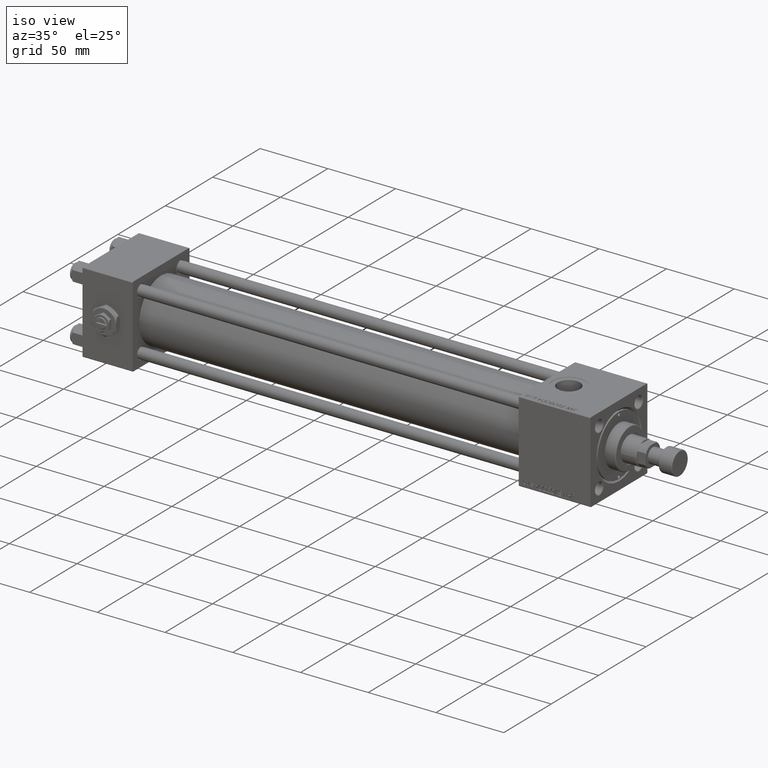
[diagram: clean part render]
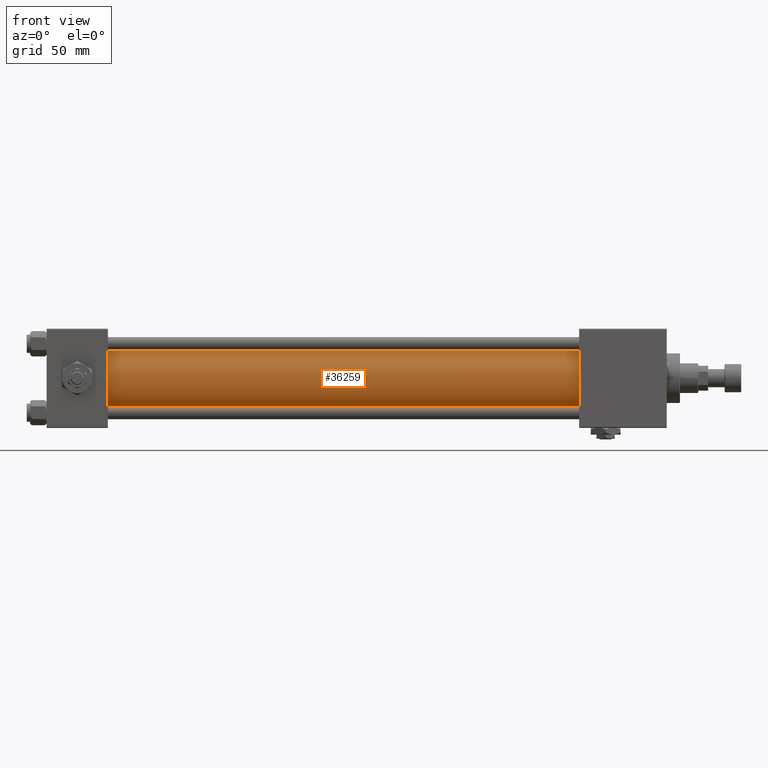
[diagram: tour spotlight — one face highlighted and labeled with its STEP entity id]
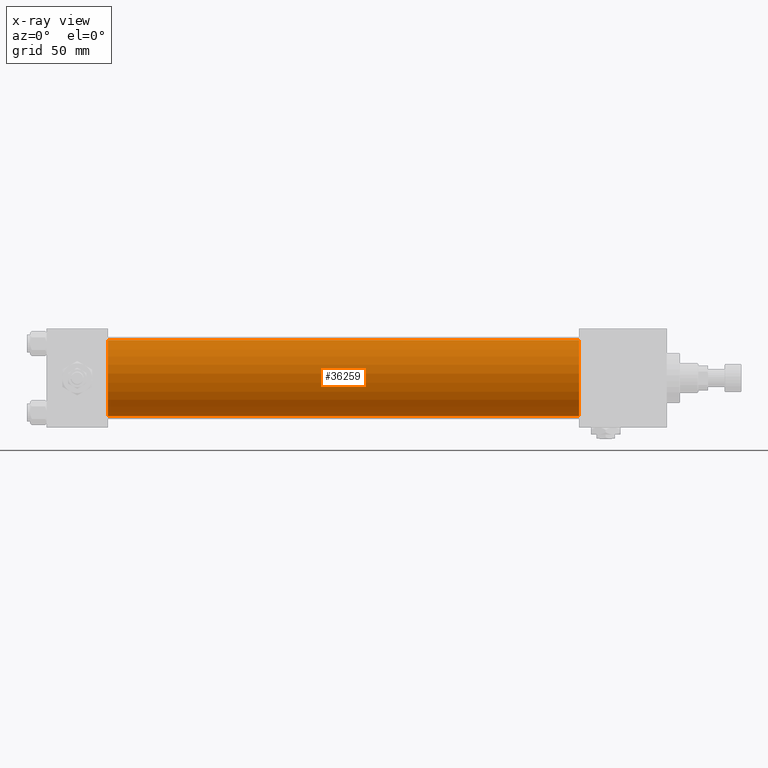
[diagram: x-ray of the same camera — body ghosted, this tour face saturated]
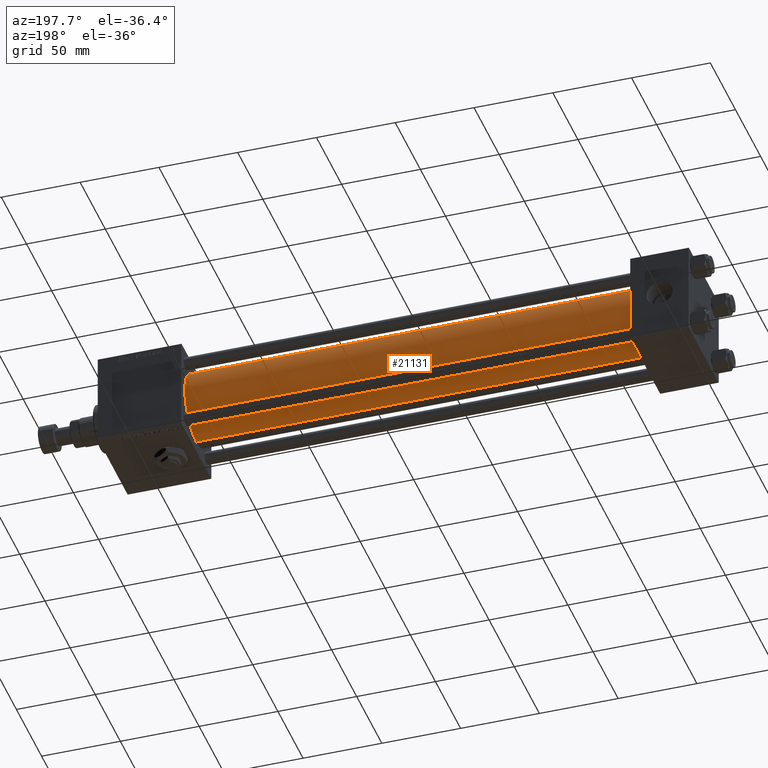
[diagram: tour spotlight — one face highlighted and labeled with its STEP entity id]
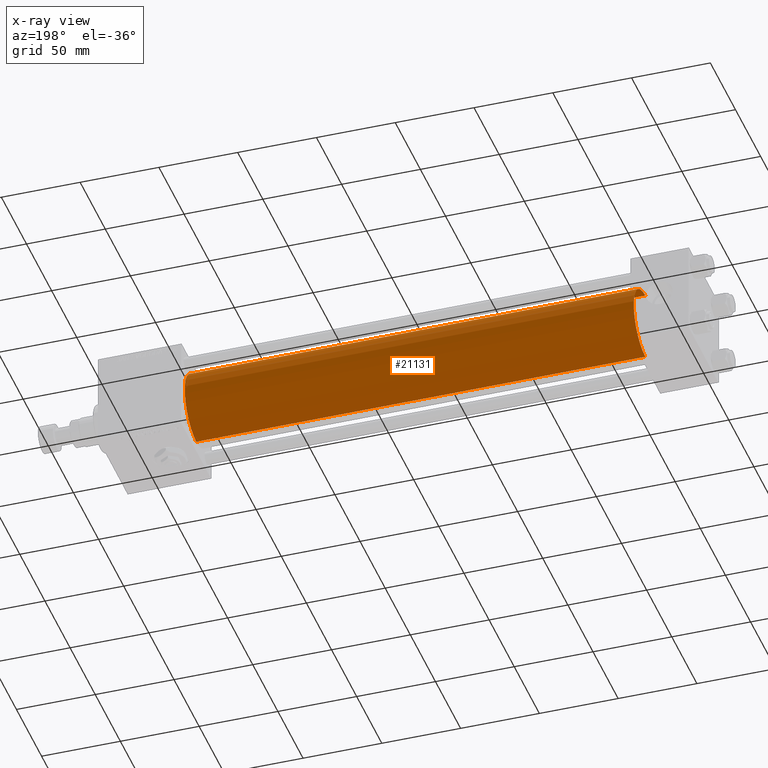
[diagram: x-ray of the same camera — body ghosted, this tour face saturated]
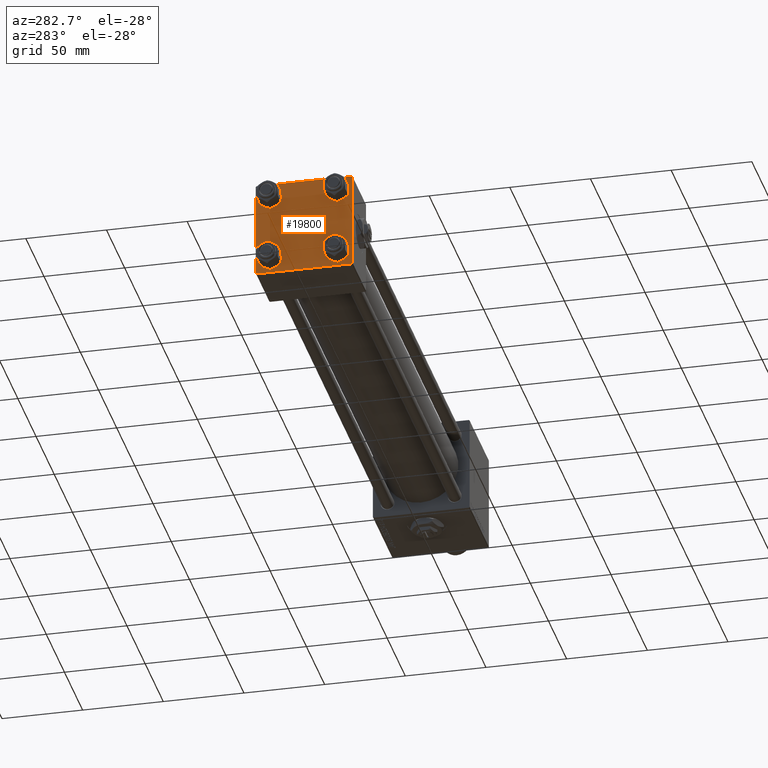
[diagram: tour spotlight — one face highlighted and labeled with its STEP entity id]
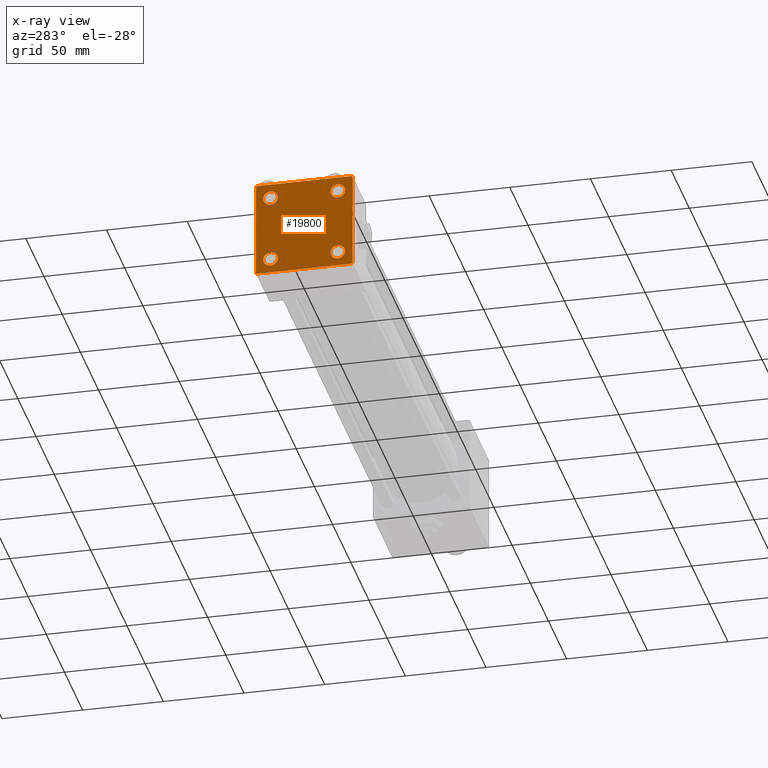
[diagram: x-ray of the same camera — body ghosted, this tour face saturated]
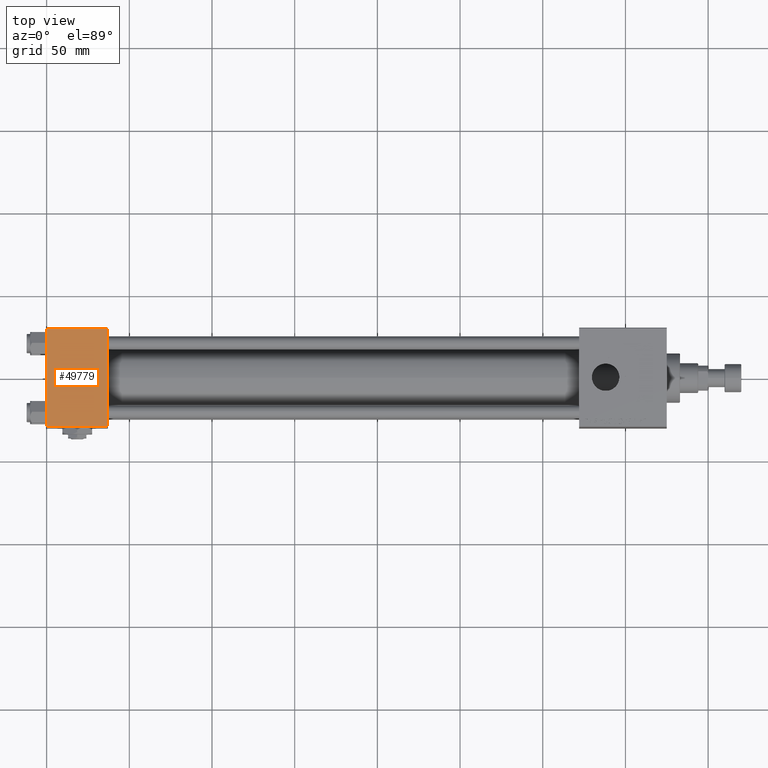
[diagram: tour spotlight — one face highlighted and labeled with its STEP entity id]
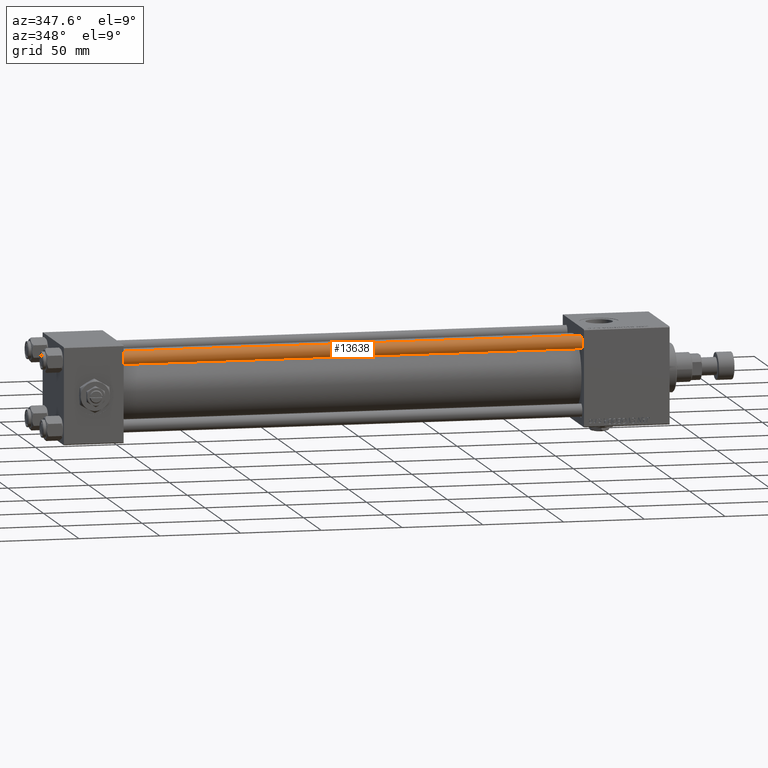
[diagram: tour spotlight — one face highlighted and labeled with its STEP entity id]
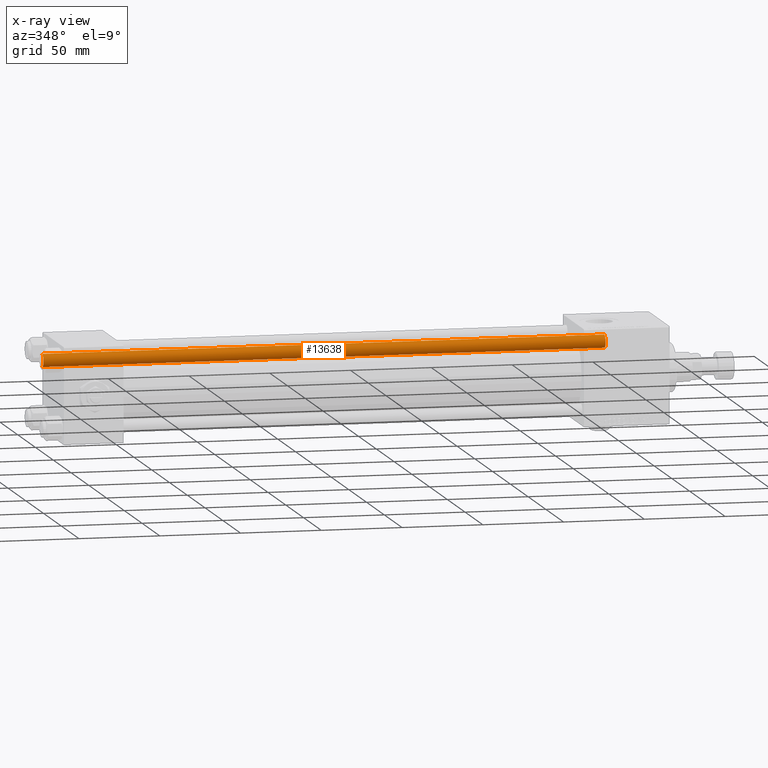
[diagram: x-ray of the same camera — body ghosted, this tour face saturated]
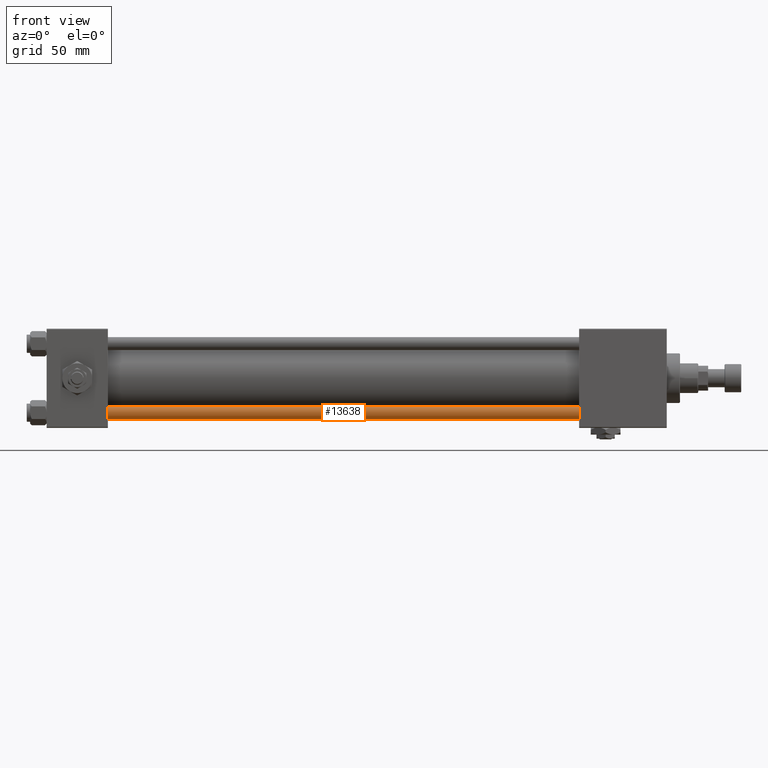
[diagram: tour spotlight — one face highlighted and labeled with its STEP entity id]
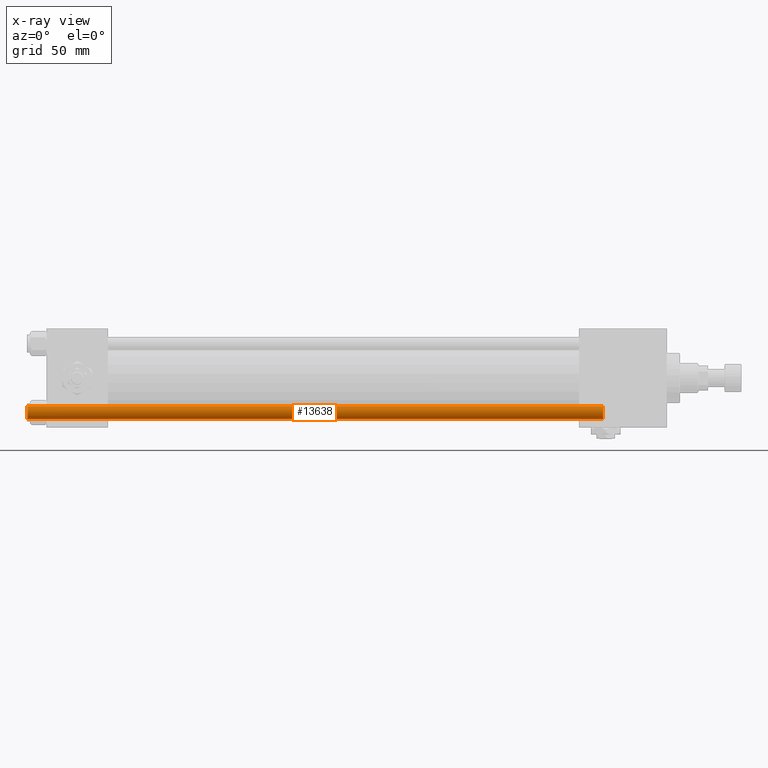
[diagram: x-ray of the same camera — body ghosted, this tour face saturated]
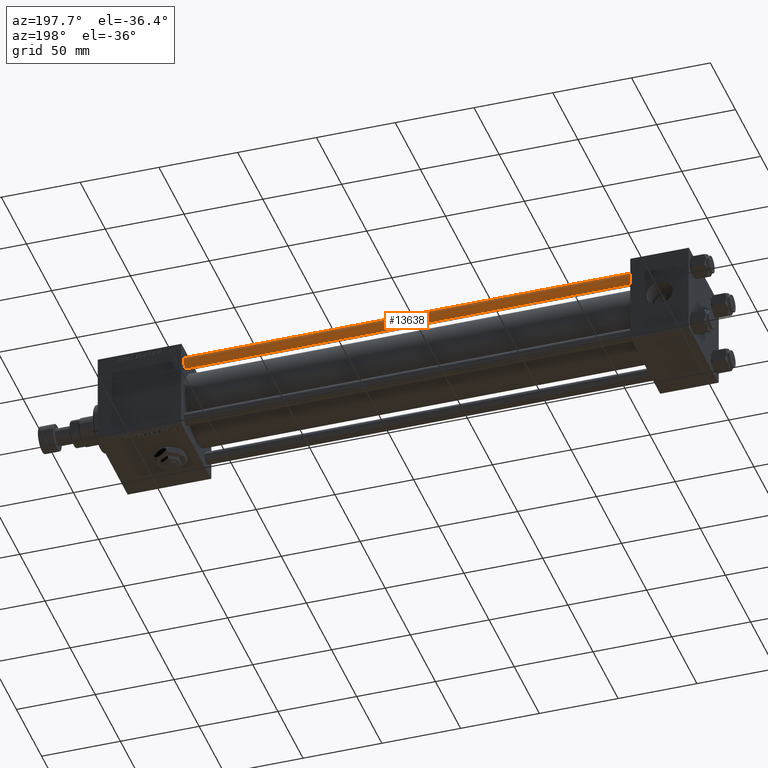
[diagram: tour spotlight — one face highlighted and labeled with its STEP entity id]
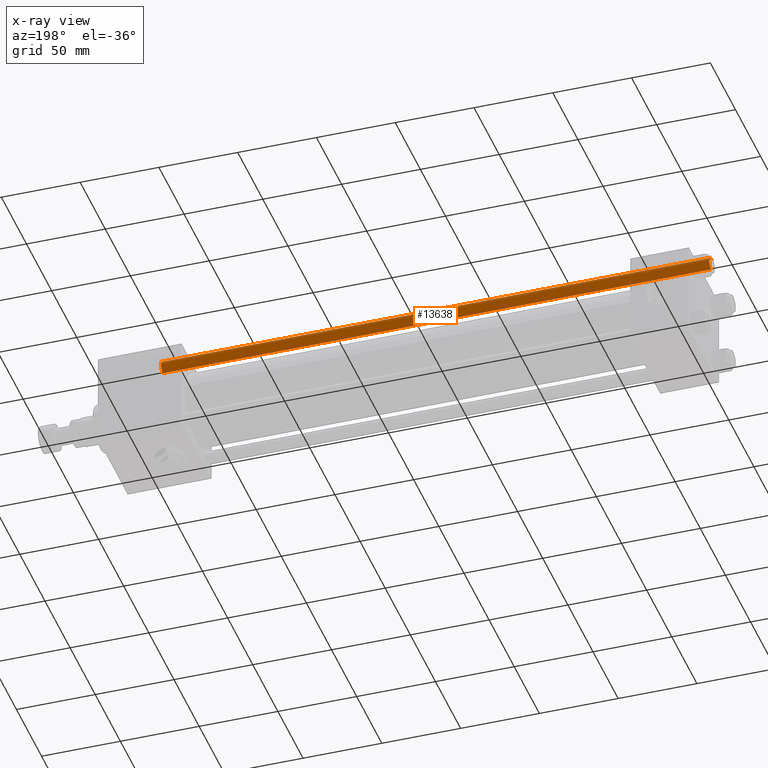
[diagram: x-ray of the same camera — body ghosted, this tour face saturated]
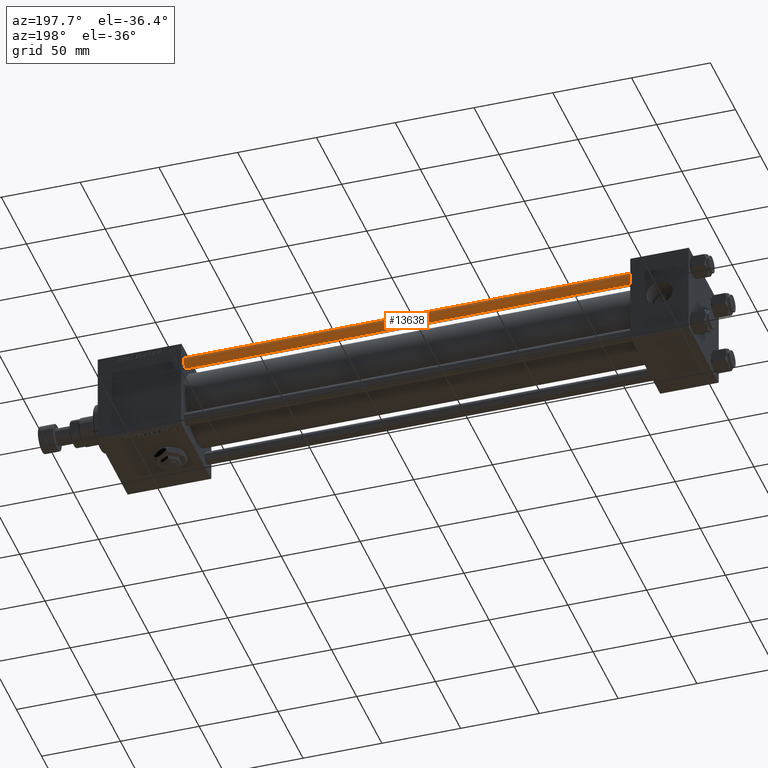
[diagram: tour spotlight — one face highlighted and labeled with its STEP entity id]
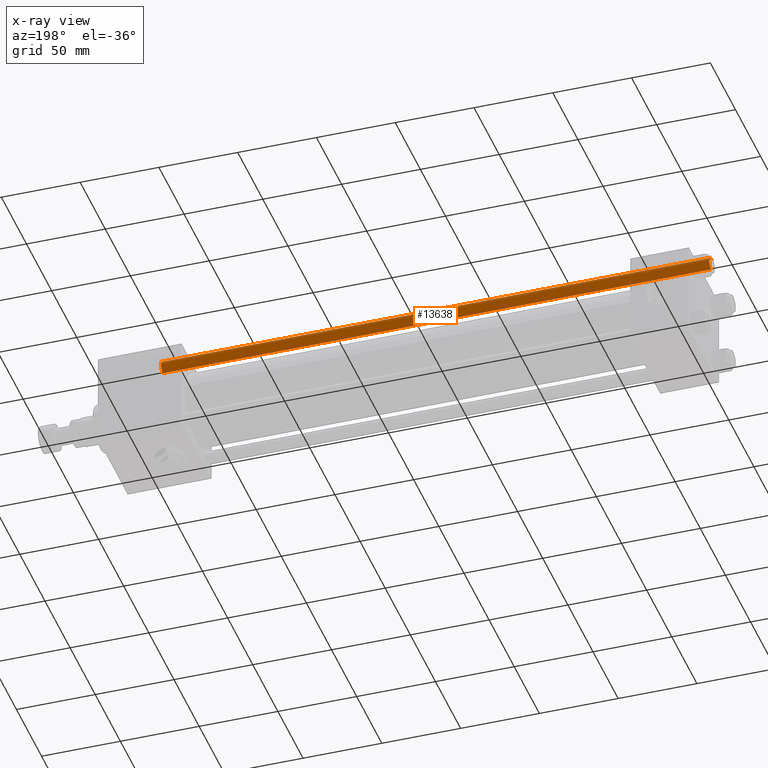
[diagram: x-ray of the same camera — body ghosted, this tour face saturated]
A machine part: a face-by-face anatomy tour. The part has 1267 B-rep faces; the first image is the clean iso view, then the 8 largest visible faces are spotlighted one at a time (largest first), each with its STEP entity span.

Face 1 — front view, entity #36259. An x-ray twin of the same camera follows (body ghosted, this face saturated) — the face is partly hidden behind the body. In plain terms, the highlighted cylindrical surface (partial cylindrical patch) has radius 23 mm, axis along (-1, -0, -0).
Definition (entity closure, byte-faithful):
#1541 = DIRECTION ( 'NONE',  ( -1.000000000000000000, -0.000000000000000000, -0.000000000000000000 ) ) ;
#3483 = DIRECTION ( 'NONE',  ( 0.000000000000000000, 0.000000000000000000, -1.000000000000000000 ) ) ;
#4223 = EDGE_CURVE ( 'NONE', #34495, #34397, #50400, .T. ) ;
#4259 = CIRCLE ( 'NONE', #34068, 23.00000000000000000 ) ;
#4943 = ORIENTED_EDGE ( 'NONE', *, *, #4223, .F. ) ;
#5085 = AXIS2_PLACEMENT_3D ( 'NONE', #38764, #43548, #6986 ) ;
#5568 = DIRECTION ( 'NONE',  ( -1.000000000000000000, -0.000000000000000000, -0.000000000000000000 ) ) ;
#6986 = DIRECTION ( 'NONE',  ( 0.000000000000000000, 0.000000000000000000, 1.000000000000000000 ) ) ;
#8114 = CARTESIAN_POINT ( 'NONE',  ( 36.99999999999997868, -2.602085213965210642E-15, 0.000000000000000000 ) ) ;
#9907 = CARTESIAN_POINT ( 'NONE',  ( 321.9999999999999432, 2.146024240737016609E-16, -23.00000000000000000 ) ) ;
#10939 = DIRECTION ( 'NONE',  ( 1.000000000000000000, 0.000000000000000000, 0.000000000000000000 ) ) ;
#16381 = DIRECTION ( 'NONE',  ( 1.000000000000000000, -0.000000000000000000, 0.000000000000000000 ) ) ;
#18782 = EDGE_CURVE ( 'NONE', #31307, #18832, #42102, .T. ) ;
#18832 = VERTEX_POINT ( 'NONE', #46632 ) ;
#21823 = ORIENTED_EDGE ( 'NONE', *, *, #18782, .T. ) ;
#21978 = CARTESIAN_POINT ( 'NONE',  ( 321.9999999999999432, -2.602085213965210642E-15, 23.00000000000000000 ) ) ;
#24225 = VECTOR ( 'NONE', #1541, 1000.000000000000000 ) ;
#24682 = DIRECTION ( 'NONE',  ( 0.000000000000000000, 0.000000000000000000, 1.000000000000000000 ) ) ;
#29337 = CARTESIAN_POINT ( 'NONE',  ( 321.9999999999999432, 2.146024240737016609E-16, -23.00000000000000000 ) ) ;
#31307 = VERTEX_POINT ( 'NONE', #21978 ) ;
#32717 = EDGE_CURVE ( 'NONE', #31307, #34495, #52703, .T. ) ;
#34038 = ORIENTED_EDGE ( 'NONE', *, *, #32717, .F. ) ;
#34068 = AXIS2_PLACEMENT_3D ( 'NONE', #8114, #16381, #24682 ) ;
#34397 = VERTEX_POINT ( 'NONE', #43318 ) ;
#34495 = VERTEX_POINT ( 'NONE', #9907 ) ;
#36024 = EDGE_CURVE ( 'NONE', #18832, #34397, #4259, .T. ) ;
#36259 = ADVANCED_FACE ( 'NONE', ( #42759 ), #47563, .T. ) ;
#36346 = VECTOR ( 'NONE', #5568, 1000.000000000000000 ) ;
#38370 = CARTESIAN_POINT ( 'NONE',  ( 321.9999999999999432, -2.602085213965210642E-15, 23.00000000000000000 ) ) ;
#38764 = CARTESIAN_POINT ( 'NONE',  ( 321.9999999999999432, -2.602085213965210642E-15, 0.000000000000000000 ) ) ;
#39053 = AXIS2_PLACEMENT_3D ( 'NONE', #48597, #10939, #3483 ) ;
#42102 = LINE ( 'NONE', #38370, #24225 ) ;
#42759 = FACE_OUTER_BOUND ( 'NONE', #47213, .T. ) ;
#43318 = CARTESIAN_POINT ( 'NONE',  ( 36.99999999999997868, 2.146024240737016609E-16, -23.00000000000000000 ) ) ;
#43548 = DIRECTION ( 'NONE',  ( -1.000000000000000000, -0.000000000000000000, -0.000000000000000000 ) ) ;
#46632 = CARTESIAN_POINT ( 'NONE',  ( 36.99999999999997868, -2.602085213965210642E-15, 23.00000000000000000 ) ) ;
#47213 = EDGE_LOOP ( 'NONE', ( #4943, #34038, #21823, #51090 ) ) ;
#47563 = CYLINDRICAL_SURFACE ( 'NONE', #5085, 23.00000000000000000 ) ;
#48597 = CARTESIAN_POINT ( 'NONE',  ( 321.9999999999999432, -2.602085213965210642E-15, 0.000000000000000000 ) ) ;
#50400 = LINE ( 'NONE', #29337, #36346 ) ;
#51090 = ORIENTED_EDGE ( 'NONE', *, *, #36024, .T. ) ;
#52703 = CIRCLE ( 'NONE', #39053, 23.00000000000000000 ) ;

Face 2 — auxiliary view, entity #21131. An x-ray twin of the same camera follows (body ghosted, this face saturated) — the face is partly hidden behind the body. In plain terms, the highlighted cylindrical surface (partial cylindrical patch) has radius 23 mm, axis along (-1, -0, -0).
Definition (entity closure, byte-faithful):
#1541 = DIRECTION ( 'NONE',  ( -1.000000000000000000, -0.000000000000000000, -0.000000000000000000 ) ) ;
#3132 = DIRECTION ( 'NONE',  ( -1.000000000000000000, -0.000000000000000000, -0.000000000000000000 ) ) ;
#4223 = EDGE_CURVE ( 'NONE', #34495, #34397, #50400, .T. ) ;
#5281 = ORIENTED_EDGE ( 'NONE', *, *, #18782, .F. ) ;
#5568 = DIRECTION ( 'NONE',  ( -1.000000000000000000, -0.000000000000000000, -0.000000000000000000 ) ) ;
#6401 = AXIS2_PLACEMENT_3D ( 'NONE', #7389, #3132, #18873 ) ;
#6603 = CYLINDRICAL_SURFACE ( 'NONE', #6401, 23.00000000000000000 ) ;
#7389 = CARTESIAN_POINT ( 'NONE',  ( 321.9999999999999432, -2.602085213965210642E-15, 0.000000000000000000 ) ) ;
#9854 = ORIENTED_EDGE ( 'NONE', *, *, #4223, .T. ) ;
#9907 = CARTESIAN_POINT ( 'NONE',  ( 321.9999999999999432, 2.146024240737016609E-16, -23.00000000000000000 ) ) ;
#11831 = CIRCLE ( 'NONE', #22878, 23.00000000000000000 ) ;
#12167 = DIRECTION ( 'NONE',  ( 0.000000000000000000, 0.000000000000000000, -1.000000000000000000 ) ) ;
#18782 = EDGE_CURVE ( 'NONE', #31307, #18832, #42102, .T. ) ;
#18832 = VERTEX_POINT ( 'NONE', #46632 ) ;
#18873 = DIRECTION ( 'NONE',  ( 0.000000000000000000, 0.000000000000000000, 1.000000000000000000 ) ) ;
#21131 = ADVANCED_FACE ( 'NONE', ( #51702 ), #6603, .T. ) ;
#21978 = CARTESIAN_POINT ( 'NONE',  ( 321.9999999999999432, -2.602085213965210642E-15, 23.00000000000000000 ) ) ;
#22878 = AXIS2_PLACEMENT_3D ( 'NONE', #48754, #44206, #12167 ) ;
#24225 = VECTOR ( 'NONE', #1541, 1000.000000000000000 ) ;
#24254 = ORIENTED_EDGE ( 'NONE', *, *, #44637, .T. ) ;
#27116 = CIRCLE ( 'NONE', #31375, 23.00000000000000000 ) ;
#29337 = CARTESIAN_POINT ( 'NONE',  ( 321.9999999999999432, 2.146024240737016609E-16, -23.00000000000000000 ) ) ;
#31307 = VERTEX_POINT ( 'NONE', #21978 ) ;
#31375 = AXIS2_PLACEMENT_3D ( 'NONE', #48406, #44400, #48681 ) ;
#34397 = VERTEX_POINT ( 'NONE', #43318 ) ;
#34495 = VERTEX_POINT ( 'NONE', #9907 ) ;
#36346 = VECTOR ( 'NONE', #5568, 1000.000000000000000 ) ;
#38370 = CARTESIAN_POINT ( 'NONE',  ( 321.9999999999999432, -2.602085213965210642E-15, 23.00000000000000000 ) ) ;
#42102 = LINE ( 'NONE', #38370, #24225 ) ;
#43318 = CARTESIAN_POINT ( 'NONE',  ( 36.99999999999997868, 2.146024240737016609E-16, -23.00000000000000000 ) ) ;
#43663 = EDGE_LOOP ( 'NONE', ( #50521, #9854, #24254, #5281 ) ) ;
#44206 = DIRECTION ( 'NONE',  ( 1.000000000000000000, 0.000000000000000000, 0.000000000000000000 ) ) ;
#44400 = DIRECTION ( 'NONE',  ( 1.000000000000000000, -0.000000000000000000, 0.000000000000000000 ) ) ;
#44637 = EDGE_CURVE ( 'NONE', #34397, #18832, #27116, .T. ) ;
#45119 = EDGE_CURVE ( 'NONE', #34495, #31307, #11831, .T. ) ;
#46632 = CARTESIAN_POINT ( 'NONE',  ( 36.99999999999997868, -2.602085213965210642E-15, 23.00000000000000000 ) ) ;
#48406 = CARTESIAN_POINT ( 'NONE',  ( 36.99999999999997868, -2.602085213965210642E-15, 0.000000000000000000 ) ) ;
#48681 = DIRECTION ( 'NONE',  ( 0.000000000000000000, 0.000000000000000000, 1.000000000000000000 ) ) ;
#48754 = CARTESIAN_POINT ( 'NONE',  ( 321.9999999999999432, -2.602085213965210642E-15, 0.000000000000000000 ) ) ;
#50400 = LINE ( 'NONE', #29337, #36346 ) ;
#50521 = ORIENTED_EDGE ( 'NONE', *, *, #45119, .F. ) ;
#51702 = FACE_OUTER_BOUND ( 'NONE', #43663, .T. ) ;

Face 3 — auxiliary view, entity #19800. An x-ray twin of the same camera follows (body ghosted, this face saturated) — the face is partly hidden behind the body. In plain terms, the highlighted planar face has unit normal (-1, 0, 0).
Definition (entity closure, byte-faithful):
#1275 = LINE ( 'NONE', #50635, #8866 ) ;
#1331 = CARTESIAN_POINT ( 'NONE',  ( 0.000000000000000000, 29.49999999999997868, -30.00000000000000000 ) ) ;
#1455 = LINE ( 'NONE', #34788, #7581 ) ;
#1680 = CIRCLE ( 'NONE', #5938, 4.500000000000017764 ) ;
#2155 = VERTEX_POINT ( 'NONE', #49653 ) ;
#2359 = CARTESIAN_POINT ( 'NONE',  ( 0.000000000000000000, -30.00000000000000000, 29.49999999999999289 ) ) ;
#2920 = FACE_BOUND ( 'NONE', #39625, .T. ) ;
#3192 = CARTESIAN_POINT ( 'NONE',  ( 0.000000000000000000, 20.84999999999999787, -20.85000000000000142 ) ) ;
#3428 = VERTEX_POINT ( 'NONE', #34819 ) ;
#3810 = EDGE_CURVE ( 'NONE', #51955, #36651, #16314, .T. ) ;
#4359 = CARTESIAN_POINT ( 'NONE',  ( 0.000000000000000000, 29.99999999999999289, 29.50000000000000000 ) ) ;
#4527 = ORIENTED_EDGE ( 'NONE', *, *, #33400, .T. ) ;
#5048 = DIRECTION ( 'NONE',  ( 0.000000000000000000, 0.000000000000000000, 1.000000000000000000 ) ) ;
#5545 = DIRECTION ( 'NONE',  ( 0.000000000000000000, -0.7071067811865474617, 0.7071067811865474617 ) ) ;
#5938 = AXIS2_PLACEMENT_3D ( 'NONE', #36110, #35580, #39855 ) ;
#6167 = VERTEX_POINT ( 'NONE', #31538 ) ;
#6657 = PLANE ( 'NONE',  #34446 ) ;
#6731 = AXIS2_PLACEMENT_3D ( 'NONE', #51035, #18994, #10715 ) ;
#6972 = EDGE_LOOP ( 'NONE', ( #39996, #36644 ) ) ;
#7125 = CARTESIAN_POINT ( 'NONE',  ( 0.000000000000000000, 20.84999999999999787, 16.34999999999998366 ) ) ;
#7443 = EDGE_CURVE ( 'NONE', #50361, #42239, #22068, .T. ) ;
#7513 = CARTESIAN_POINT ( 'NONE',  ( 0.000000000000000000, -30.00000000000000000, 29.99999999999999289 ) ) ;
#7581 = VECTOR ( 'NONE', #17976, 999.9999999999998863 ) ;
#8866 = VECTOR ( 'NONE', #5545, 1000.000000000000114 ) ;
#9728 = ORIENTED_EDGE ( 'NONE', *, *, #40375, .T. ) ;
#10331 = DIRECTION ( 'NONE',  ( 0.000000000000000000, -1.000000000000000000, -1.156482317317871725E-16 ) ) ;
#10543 = EDGE_LOOP ( 'NONE', ( #20755, #16499 ) ) ;
#10715 = DIRECTION ( 'NONE',  ( 0.000000000000000000, 0.000000000000000000, 1.000000000000000000 ) ) ;
#11356 = ORIENTED_EDGE ( 'NONE', *, *, #7443, .T. ) ;
#11599 = VECTOR ( 'NONE', #40620, 1000.000000000000000 ) ;
#11890 = CARTESIAN_POINT ( 'NONE',  ( 0.000000000000000000, 29.49999999999999289, 30.00000000000000000 ) ) ;
#12356 = EDGE_LOOP ( 'NONE', ( #45228, #25575, #28808, #46314, #49483, #15357, #16979, #9728 ) ) ;
#12419 = DIRECTION ( 'NONE',  ( 0.000000000000000000, 0.000000000000000000, 1.000000000000000000 ) ) ;
#12799 = ORIENTED_EDGE ( 'NONE', *, *, #47112, .T. ) ;
#13029 = VERTEX_POINT ( 'NONE', #4359 ) ;
#13444 = CARTESIAN_POINT ( 'NONE',  ( 0.000000000000000000, -20.84999999999999076, -20.85000000000000497 ) ) ;
#13707 = EDGE_CURVE ( 'NONE', #51955, #29269, #47338, .T. ) ;
#13941 = LINE ( 'NONE', #30244, #35357 ) ;
#14754 = DIRECTION ( 'NONE',  ( -0.000000000000000000, 0.7071067811865474617, 0.7071067811865474617 ) ) ;
#15357 = ORIENTED_EDGE ( 'NONE', *, *, #13707, .T. ) ;
#16314 = LINE ( 'NONE', #7513, #11599 ) ;
#16499 = ORIENTED_EDGE ( 'NONE', *, *, #20796, .T. ) ;
#16979 = ORIENTED_EDGE ( 'NONE', *, *, #20706, .F. ) ;
#17791 = ORIENTED_EDGE ( 'NONE', *, *, #52106, .T. ) ;
#17821 = AXIS2_PLACEMENT_3D ( 'NONE', #45608, #41606, #5048 ) ;
#17976 = DIRECTION ( 'NONE',  ( -0.000000000000000000, -0.7071067811865574537, -0.7071067811865376918 ) ) ;
#18033 = CIRCLE ( 'NONE', #47921, 4.500000000000017764 ) ;
#18617 = EDGE_CURVE ( 'NONE', #13029, #6167, #23441, .T. ) ;
#18751 = EDGE_CURVE ( 'NONE', #3428, #36651, #1275, .T. ) ;
#18994 = DIRECTION ( 'NONE',  ( 1.000000000000000000, -0.000000000000000000, 0.000000000000000000 ) ) ;
#19447 = DIRECTION ( 'NONE',  ( -1.000000000000000000, 0.000000000000000000, -0.000000000000000000 ) ) ;
#19800 = ADVANCED_FACE ( 'NONE', ( #39751, #2920, #43214, #40286, #27214 ), #6657, .T. ) ;
#20706 = EDGE_CURVE ( 'NONE', #29019, #29269, #13941, .T. ) ;
#20755 = ORIENTED_EDGE ( 'NONE', *, *, #46464, .T. ) ;
#20796 = EDGE_CURVE ( 'NONE', #46580, #2155, #32822, .T. ) ;
#21089 = VERTEX_POINT ( 'NONE', #7125 ) ;
#21246 = AXIS2_PLACEMENT_3D ( 'NONE', #52560, #36823, #45613 ) ;
#21974 = AXIS2_PLACEMENT_3D ( 'NONE', #49006, #37245, #12419 ) ;
#22068 = CIRCLE ( 'NONE', #21246, 4.500000000000017764 ) ;
#22095 = LINE ( 'NONE', #26375, #28044 ) ;
#22228 = CARTESIAN_POINT ( 'NONE',  ( 0.000000000000000000, -20.84999999999999076, -16.34999999999998721 ) ) ;
#22310 = CARTESIAN_POINT ( 'NONE',  ( 0.000000000000000000, -20.84999999999999076, 16.34999999999998721 ) ) ;
#22758 = DIRECTION ( 'NONE',  ( 1.000000000000000000, -0.000000000000000000, 0.000000000000000000 ) ) ;
#23441 = LINE ( 'NONE', #35718, #34415 ) ;
#23467 = CARTESIAN_POINT ( 'NONE',  ( 0.000000000000000000, -30.00000000000000000, -29.50000000000001776 ) ) ;
#24122 = VERTEX_POINT ( 'NONE', #25648 ) ;
#24309 = CARTESIAN_POINT ( 'NONE',  ( 0.000000000000000000, 29.74999999999999645, 29.74999999999999645 ) ) ;
#25036 = DIRECTION ( 'NONE',  ( 1.000000000000000000, -0.000000000000000000, 0.000000000000000000 ) ) ;
#25575 = ORIENTED_EDGE ( 'NONE', *, *, #34249, .T. ) ;
#25648 = CARTESIAN_POINT ( 'NONE',  ( 0.000000000000000000, -20.84999999999999076, 25.35000000000002274 ) ) ;
#26375 = CARTESIAN_POINT ( 'NONE',  ( 0.000000000000000000, 29.99999999999999289, -30.00000000000000000 ) ) ;
#26761 = DIRECTION ( 'NONE',  ( 1.000000000000000000, -0.000000000000000000, 0.000000000000000000 ) ) ;
#26940 = VERTEX_POINT ( 'NONE', #1331 ) ;
#26945 = DIRECTION ( 'NONE',  ( -0.000000000000000000, 0.000000000000000000, 1.000000000000000000 ) ) ;
#27214 = FACE_OUTER_BOUND ( 'NONE', #12356, .T. ) ;
#28044 = VECTOR ( 'NONE', #10331, 1000.000000000000000 ) ;
#28733 = CARTESIAN_POINT ( 'NONE',  ( 0.000000000000000000, -29.49999999999998579, 29.99999999999999289 ) ) ;
#28808 = ORIENTED_EDGE ( 'NONE', *, *, #42670, .T. ) ;
#29019 = VERTEX_POINT ( 'NONE', #11890 ) ;
#29269 = VERTEX_POINT ( 'NONE', #28733 ) ;
#29757 = CIRCLE ( 'NONE', #6731, 4.500000000000017764 ) ;
#30006 = VECTOR ( 'NONE', #14754, 1000.000000000000114 ) ;
#30244 = CARTESIAN_POINT ( 'NONE',  ( 0.000000000000000000, 29.99999999999999289, 30.00000000000000000 ) ) ;
#31538 = CARTESIAN_POINT ( 'NONE',  ( 0.000000000000000000, 29.99999999999999289, -29.50000000000000000 ) ) ;
#32034 = LINE ( 'NONE', #24309, #34773 ) ;
#32224 = CIRCLE ( 'NONE', #21974, 4.500000000000017764 ) ;
#32822 = CIRCLE ( 'NONE', #40489, 4.500000000000017764 ) ;
#33400 = EDGE_CURVE ( 'NONE', #42239, #50361, #39100, .T. ) ;
#33982 = VERTEX_POINT ( 'NONE', #22310 ) ;
#34249 = EDGE_CURVE ( 'NONE', #6167, #26940, #1455, .T. ) ;
#34415 = VECTOR ( 'NONE', #39729, 1000.000000000000000 ) ;
#34446 = AXIS2_PLACEMENT_3D ( 'NONE', #48565, #19447, #26945 ) ;
#34773 = VECTOR ( 'NONE', #44590, 1000.000000000000114 ) ;
#34788 = CARTESIAN_POINT ( 'NONE',  ( 0.000000000000000000, 29.74999999999957723, -29.75000000000040501 ) ) ;
#34819 = CARTESIAN_POINT ( 'NONE',  ( 0.000000000000000000, -29.50000000000000000, -30.00000000000000711 ) ) ;
#35357 = VECTOR ( 'NONE', #46526, 1000.000000000000000 ) ;
#35580 = DIRECTION ( 'NONE',  ( 1.000000000000000000, -0.000000000000000000, 0.000000000000000000 ) ) ;
#35718 = CARTESIAN_POINT ( 'NONE',  ( 0.000000000000000000, 29.99999999999999289, 30.00000000000000000 ) ) ;
#36078 = EDGE_LOOP ( 'NONE', ( #12799, #17791 ) ) ;
#36110 = CARTESIAN_POINT ( 'NONE',  ( 0.000000000000000000, -20.84999999999999076, 20.85000000000000497 ) ) ;
#36644 = ORIENTED_EDGE ( 'NONE', *, *, #42654, .T. ) ;
#36651 = VERTEX_POINT ( 'NONE', #23467 ) ;
#36823 = DIRECTION ( 'NONE',  ( 1.000000000000000000, -0.000000000000000000, 0.000000000000000000 ) ) ;
#37245 = DIRECTION ( 'NONE',  ( 1.000000000000000000, -0.000000000000000000, 0.000000000000000000 ) ) ;
#37403 = CARTESIAN_POINT ( 'NONE',  ( 0.000000000000000000, 20.84999999999999787, -25.35000000000001918 ) ) ;
#39100 = CIRCLE ( 'NONE', #49369, 4.500000000000017764 ) ;
#39625 = EDGE_LOOP ( 'NONE', ( #11356, #4527 ) ) ;
#39729 = DIRECTION ( 'NONE',  ( 0.000000000000000000, 0.000000000000000000, -1.000000000000000000 ) ) ;
#39751 = FACE_BOUND ( 'NONE', #36078, .T. ) ;
#39855 = DIRECTION ( 'NONE',  ( 0.000000000000000000, 0.000000000000000000, 1.000000000000000000 ) ) ;
#39996 = ORIENTED_EDGE ( 'NONE', *, *, #40165, .T. ) ;
#40089 = CARTESIAN_POINT ( 'NONE',  ( 0.000000000000000000, -20.84999999999999076, -25.35000000000002274 ) ) ;
#40165 = EDGE_CURVE ( 'NONE', #49852, #21089, #32224, .T. ) ;
#40286 = FACE_BOUND ( 'NONE', #6972, .T. ) ;
#40375 = EDGE_CURVE ( 'NONE', #29019, #13029, #32034, .T. ) ;
#40489 = AXIS2_PLACEMENT_3D ( 'NONE', #3192, #26761, #52559 ) ;
#40620 = DIRECTION ( 'NONE',  ( 0.000000000000000000, 0.000000000000000000, -1.000000000000000000 ) ) ;
#41023 = CARTESIAN_POINT ( 'NONE',  ( 0.000000000000000000, 20.84999999999999787, 25.35000000000001918 ) ) ;
#41606 = DIRECTION ( 'NONE',  ( 1.000000000000000000, -0.000000000000000000, 0.000000000000000000 ) ) ;
#42083 = DIRECTION ( 'NONE',  ( 0.000000000000000000, 0.000000000000000000, 1.000000000000000000 ) ) ;
#42239 = VERTEX_POINT ( 'NONE', #40089 ) ;
#42654 = EDGE_CURVE ( 'NONE', #21089, #49852, #51043, .T. ) ;
#42670 = EDGE_CURVE ( 'NONE', #26940, #3428, #22095, .T. ) ;
#43214 = FACE_BOUND ( 'NONE', #10543, .T. ) ;
#44590 = DIRECTION ( 'NONE',  ( 0.000000000000000000, 0.7071067811865474617, -0.7071067811865474617 ) ) ;
#45228 = ORIENTED_EDGE ( 'NONE', *, *, #18617, .T. ) ;
#45314 = CARTESIAN_POINT ( 'NONE',  ( 0.000000000000000000, -20.84999999999999076, 20.85000000000000497 ) ) ;
#45608 = CARTESIAN_POINT ( 'NONE',  ( 0.000000000000000000, 20.84999999999999787, 20.85000000000000142 ) ) ;
#45613 = DIRECTION ( 'NONE',  ( 0.000000000000000000, 0.000000000000000000, 1.000000000000000000 ) ) ;
#46288 = DIRECTION ( 'NONE',  ( 0.000000000000000000, 0.000000000000000000, 1.000000000000000000 ) ) ;
#46314 = ORIENTED_EDGE ( 'NONE', *, *, #18751, .T. ) ;
#46464 = EDGE_CURVE ( 'NONE', #2155, #46580, #29757, .T. ) ;
#46526 = DIRECTION ( 'NONE',  ( 0.000000000000000000, -1.000000000000000000, -1.156482317317871725E-16 ) ) ;
#46580 = VERTEX_POINT ( 'NONE', #37403 ) ;
#47112 = EDGE_CURVE ( 'NONE', #24122, #33982, #1680, .T. ) ;
#47338 = LINE ( 'NONE', #51336, #30006 ) ;
#47921 = AXIS2_PLACEMENT_3D ( 'NONE', #45314, #25036, #42083 ) ;
#48565 = CARTESIAN_POINT ( 'NONE',  ( 0.000000000000000000, 0.000000000000000000, 0.000000000000000000 ) ) ;
#49006 = CARTESIAN_POINT ( 'NONE',  ( 0.000000000000000000, 20.84999999999999787, 20.85000000000000142 ) ) ;
#49369 = AXIS2_PLACEMENT_3D ( 'NONE', #13444, #22758, #46288 ) ;
#49483 = ORIENTED_EDGE ( 'NONE', *, *, #3810, .F. ) ;
#49653 = CARTESIAN_POINT ( 'NONE',  ( 0.000000000000000000, 20.84999999999999787, -16.34999999999998366 ) ) ;
#49852 = VERTEX_POINT ( 'NONE', #41023 ) ;
#50361 = VERTEX_POINT ( 'NONE', #22228 ) ;
#50635 = CARTESIAN_POINT ( 'NONE',  ( 0.000000000000000000, -29.75000000000001066, -29.75000000000001066 ) ) ;
#51035 = CARTESIAN_POINT ( 'NONE',  ( 0.000000000000000000, 20.84999999999999787, -20.85000000000000142 ) ) ;
#51043 = CIRCLE ( 'NONE', #17821, 4.500000000000017764 ) ;
#51336 = CARTESIAN_POINT ( 'NONE',  ( -0.000000000000000000, -29.74999999999999645, 29.74999999999999645 ) ) ;
#51955 = VERTEX_POINT ( 'NONE', #2359 ) ;
#52106 = EDGE_CURVE ( 'NONE', #33982, #24122, #18033, .T. ) ;
#52559 = DIRECTION ( 'NONE',  ( 0.000000000000000000, 0.000000000000000000, 1.000000000000000000 ) ) ;
#52560 = CARTESIAN_POINT ( 'NONE',  ( 0.000000000000000000, -20.84999999999999076, -20.85000000000000497 ) ) ;

Face 4 — top view, entity #49779. In plain terms, the highlighted planar face has unit normal (0, 0, -1).
Definition (entity closure, byte-faithful):
#1292 = CARTESIAN_POINT ( 'NONE',  ( 0.000000000000000000, 29.49999999999999289, 30.00000000000000000 ) ) ;
#2853 = FACE_OUTER_BOUND ( 'NONE', #37878, .T. ) ;
#5067 = LINE ( 'NONE', #13572, #25718 ) ;
#5101 = VERTEX_POINT ( 'NONE', #46141 ) ;
#5243 = EDGE_CURVE ( 'NONE', #5101, #39404, #37291, .T. ) ;
#9783 = ORIENTED_EDGE ( 'NONE', *, *, #10553, .T. ) ;
#10553 = EDGE_CURVE ( 'NONE', #5101, #29019, #29329, .T. ) ;
#11890 = CARTESIAN_POINT ( 'NONE',  ( 0.000000000000000000, 29.49999999999999289, 30.00000000000000000 ) ) ;
#12973 = VECTOR ( 'NONE', #17554, 1000.000000000000000 ) ;
#13572 = CARTESIAN_POINT ( 'NONE',  ( 37.00000000000000000, -29.50000000000000000, 29.99999999999999289 ) ) ;
#13941 = LINE ( 'NONE', #30244, #35357 ) ;
#15640 = DIRECTION ( 'NONE',  ( 0.000000000000000000, 1.156482317317871725E-16, -1.000000000000000000 ) ) ;
#15826 = ORIENTED_EDGE ( 'NONE', *, *, #51790, .T. ) ;
#17143 = ORIENTED_EDGE ( 'NONE', *, *, #5243, .F. ) ;
#17554 = DIRECTION ( 'NONE',  ( -1.000000000000000000, 0.000000000000000000, 0.000000000000000000 ) ) ;
#18795 = AXIS2_PLACEMENT_3D ( 'NONE', #31134, #15640, #22603 ) ;
#20191 = VECTOR ( 'NONE', #33279, 1000.000000000000000 ) ;
#20706 = EDGE_CURVE ( 'NONE', #29019, #29269, #13941, .T. ) ;
#21330 = DIRECTION ( 'NONE',  ( 1.000000000000000000, 0.000000000000000000, 0.000000000000000000 ) ) ;
#22603 = DIRECTION ( 'NONE',  ( 0.000000000000000000, 1.000000000000000000, 1.156482317317871725E-16 ) ) ;
#25524 = ORIENTED_EDGE ( 'NONE', *, *, #20706, .T. ) ;
#25718 = VECTOR ( 'NONE', #21330, 1000.000000000000000 ) ;
#28733 = CARTESIAN_POINT ( 'NONE',  ( 0.000000000000000000, -29.49999999999998579, 29.99999999999999289 ) ) ;
#29019 = VERTEX_POINT ( 'NONE', #11890 ) ;
#29269 = VERTEX_POINT ( 'NONE', #28733 ) ;
#29329 = LINE ( 'NONE', #1292, #12973 ) ;
#29411 = CARTESIAN_POINT ( 'NONE',  ( 37.00000000000000000, -29.49999999999998579, 29.99999999999999289 ) ) ;
#30244 = CARTESIAN_POINT ( 'NONE',  ( 0.000000000000000000, 29.99999999999999289, 30.00000000000000000 ) ) ;
#31134 = CARTESIAN_POINT ( 'NONE',  ( 37.00000000000000000, 29.99999999999999289, 30.00000000000000000 ) ) ;
#31401 = PLANE ( 'NONE',  #18795 ) ;
#33279 = DIRECTION ( 'NONE',  ( 0.000000000000000000, -1.000000000000000000, -1.156482317317871725E-16 ) ) ;
#35357 = VECTOR ( 'NONE', #46526, 1000.000000000000000 ) ;
#37291 = LINE ( 'NONE', #41298, #20191 ) ;
#37878 = EDGE_LOOP ( 'NONE', ( #25524, #15826, #17143, #9783 ) ) ;
#39404 = VERTEX_POINT ( 'NONE', #29411 ) ;
#41298 = CARTESIAN_POINT ( 'NONE',  ( 37.00000000000000000, 29.99999999999999289, 30.00000000000000000 ) ) ;
#46141 = CARTESIAN_POINT ( 'NONE',  ( 37.00000000000000000, 29.49999999999999289, 30.00000000000000000 ) ) ;
#46526 = DIRECTION ( 'NONE',  ( 0.000000000000000000, -1.000000000000000000, -1.156482317317871725E-16 ) ) ;
#49779 = ADVANCED_FACE ( 'NONE', ( #2853 ), #31401, .F. ) ;
#51790 = EDGE_CURVE ( 'NONE', #29269, #39404, #5067, .T. ) ;

Face 5 — auxiliary view, entity #13638. An x-ray twin of the same camera follows (body ghosted, this face saturated) — the face is partly hidden behind the body. In plain terms, the highlighted cylindrical surface (edge-blend (fillet) strip) has radius 4 mm, axis along (1, 0, -0).
Definition (entity closure, byte-faithful):
#1746 = DIRECTION ( 'NONE',  ( 1.000000000000000000, 0.000000000000000000, 0.000000000000000000 ) ) ;
#5037 = CIRCLE ( 'NONE', #42544, 4.000000000000000000 ) ;
#5467 = DIRECTION ( 'NONE',  ( -0.000000000000000000, -0.000000000000000000, -1.000000000000000000 ) ) ;
#6465 = CARTESIAN_POINT ( 'NONE',  ( -4.000000000000000000, 0.000000000000000000, 0.4999999999999449329 ) ) ;
#7377 = DIRECTION ( 'NONE',  ( 0.000000000000000000, 0.000000000000000000, -1.000000000000000000 ) ) ;
#9444 = CARTESIAN_POINT ( 'NONE',  ( 4.000000000000000000, 4.898587196589412829E-16, 0.4999999999999449329 ) ) ;
#9715 = DIRECTION ( 'NONE',  ( -1.000000000000000000, 0.000000000000000000, 0.000000000000000000 ) ) ;
#11198 = VERTEX_POINT ( 'NONE', #6465 ) ;
#11316 = AXIS2_PLACEMENT_3D ( 'NONE', #46300, #5467, #9715 ) ;
#12036 = ORIENTED_EDGE ( 'NONE', *, *, #35526, .F. ) ;
#13638 = ADVANCED_FACE ( 'NONE', ( #30015 ), #21732, .T. ) ;
#14015 = CARTESIAN_POINT ( 'NONE',  ( 4.000000000000000000, 4.898587196589412829E-16, 348.4999999999999432 ) ) ;
#14345 = EDGE_CURVE ( 'NONE', #50825, #51095, #27407, .T. ) ;
#16776 = AXIS2_PLACEMENT_3D ( 'NONE', #24753, #7377, #48222 ) ;
#19292 = EDGE_LOOP ( 'NONE', ( #30944, #22791, #31260, #12036 ) ) ;
#21092 = CARTESIAN_POINT ( 'NONE',  ( -4.000000000000000000, 0.000000000000000000, 349.0000000000000000 ) ) ;
#21732 = CYLINDRICAL_SURFACE ( 'NONE', #11316, 4.000000000000000000 ) ;
#22021 = DIRECTION ( 'NONE',  ( -0.000000000000000000, -0.000000000000000000, 1.000000000000000000 ) ) ;
#22791 = ORIENTED_EDGE ( 'NONE', *, *, #14345, .T. ) ;
#24501 = EDGE_CURVE ( 'NONE', #39867, #50825, #43165, .T. ) ;
#24753 = CARTESIAN_POINT ( 'NONE',  ( 0.000000000000000000, 0.000000000000000000, 348.4999999999999432 ) ) ;
#27407 = LINE ( 'NONE', #34888, #52158 ) ;
#30015 = FACE_OUTER_BOUND ( 'NONE', #19292, .T. ) ;
#30944 = ORIENTED_EDGE ( 'NONE', *, *, #24501, .T. ) ;
#31260 = ORIENTED_EDGE ( 'NONE', *, *, #46031, .T. ) ;
#32581 = DIRECTION ( 'NONE',  ( -0.000000000000000000, -0.000000000000000000, -1.000000000000000000 ) ) ;
#32765 = CARTESIAN_POINT ( 'NONE',  ( -4.000000000000000000, 0.000000000000000000, 348.4999999999999432 ) ) ;
#32847 = LINE ( 'NONE', #21092, #38340 ) ;
#34044 = CARTESIAN_POINT ( 'NONE',  ( 0.000000000000000000, 0.000000000000000000, 0.4999999999999449329 ) ) ;
#34888 = CARTESIAN_POINT ( 'NONE',  ( 4.000000000000000000, 4.898587196589412829E-16, 349.0000000000000000 ) ) ;
#35526 = EDGE_CURVE ( 'NONE', #39867, #11198, #32847, .T. ) ;
#38340 = VECTOR ( 'NONE', #32581, 1000.000000000000000 ) ;
#39867 = VERTEX_POINT ( 'NONE', #32765 ) ;
#42544 = AXIS2_PLACEMENT_3D ( 'NONE', #34044, #22021, #1746 ) ;
#42888 = DIRECTION ( 'NONE',  ( -0.000000000000000000, -0.000000000000000000, -1.000000000000000000 ) ) ;
#43165 = CIRCLE ( 'NONE', #16776, 4.000000000000000000 ) ;
#46031 = EDGE_CURVE ( 'NONE', #51095, #11198, #5037, .T. ) ;
#46300 = CARTESIAN_POINT ( 'NONE',  ( 0.000000000000000000, 0.000000000000000000, 349.0000000000000000 ) ) ;
#48222 = DIRECTION ( 'NONE',  ( 1.000000000000000000, 0.000000000000000000, 0.000000000000000000 ) ) ;
#50825 = VERTEX_POINT ( 'NONE', #14015 ) ;
#51095 = VERTEX_POINT ( 'NONE', #9444 ) ;
#52158 = VECTOR ( 'NONE', #42888, 1000.000000000000000 ) ;

Face 6 — front view, entity #13638. An x-ray twin of the same camera follows (body ghosted, this face saturated) — the face is partly hidden behind the body. In plain terms, the highlighted cylindrical surface (edge-blend (fillet) strip) has radius 4 mm, axis along (-1, -0, -0).
Definition (entity closure, byte-faithful):
#1746 = DIRECTION ( 'NONE',  ( 1.000000000000000000, 0.000000000000000000, 0.000000000000000000 ) ) ;
#5037 = CIRCLE ( 'NONE', #42544, 4.000000000000000000 ) ;
#5467 = DIRECTION ( 'NONE',  ( -0.000000000000000000, -0.000000000000000000, -1.000000000000000000 ) ) ;
#6465 = CARTESIAN_POINT ( 'NONE',  ( -4.000000000000000000, 0.000000000000000000, 0.4999999999999449329 ) ) ;
#7377 = DIRECTION ( 'NONE',  ( 0.000000000000000000, 0.000000000000000000, -1.000000000000000000 ) ) ;
#9444 = CARTESIAN_POINT ( 'NONE',  ( 4.000000000000000000, 4.898587196589412829E-16, 0.4999999999999449329 ) ) ;
#9715 = DIRECTION ( 'NONE',  ( -1.000000000000000000, 0.000000000000000000, 0.000000000000000000 ) ) ;
#11198 = VERTEX_POINT ( 'NONE', #6465 ) ;
#11316 = AXIS2_PLACEMENT_3D ( 'NONE', #46300, #5467, #9715 ) ;
#12036 = ORIENTED_EDGE ( 'NONE', *, *, #35526, .F. ) ;
#13638 = ADVANCED_FACE ( 'NONE', ( #30015 ), #21732, .T. ) ;
#14015 = CARTESIAN_POINT ( 'NONE',  ( 4.000000000000000000, 4.898587196589412829E-16, 348.4999999999999432 ) ) ;
#14345 = EDGE_CURVE ( 'NONE', #50825, #51095, #27407, .T. ) ;
#16776 = AXIS2_PLACEMENT_3D ( 'NONE', #24753, #7377, #48222 ) ;
#19292 = EDGE_LOOP ( 'NONE', ( #30944, #22791, #31260, #12036 ) ) ;
#21092 = CARTESIAN_POINT ( 'NONE',  ( -4.000000000000000000, 0.000000000000000000, 349.0000000000000000 ) ) ;
#21732 = CYLINDRICAL_SURFACE ( 'NONE', #11316, 4.000000000000000000 ) ;
#22021 = DIRECTION ( 'NONE',  ( -0.000000000000000000, -0.000000000000000000, 1.000000000000000000 ) ) ;
#22791 = ORIENTED_EDGE ( 'NONE', *, *, #14345, .T. ) ;
#24501 = EDGE_CURVE ( 'NONE', #39867, #50825, #43165, .T. ) ;
#24753 = CARTESIAN_POINT ( 'NONE',  ( 0.000000000000000000, 0.000000000000000000, 348.4999999999999432 ) ) ;
#27407 = LINE ( 'NONE', #34888, #52158 ) ;
#30015 = FACE_OUTER_BOUND ( 'NONE', #19292, .T. ) ;
#30944 = ORIENTED_EDGE ( 'NONE', *, *, #24501, .T. ) ;
#31260 = ORIENTED_EDGE ( 'NONE', *, *, #46031, .T. ) ;
#32581 = DIRECTION ( 'NONE',  ( -0.000000000000000000, -0.000000000000000000, -1.000000000000000000 ) ) ;
#32765 = CARTESIAN_POINT ( 'NONE',  ( -4.000000000000000000, 0.000000000000000000, 348.4999999999999432 ) ) ;
#32847 = LINE ( 'NONE', #21092, #38340 ) ;
#34044 = CARTESIAN_POINT ( 'NONE',  ( 0.000000000000000000, 0.000000000000000000, 0.4999999999999449329 ) ) ;
#34888 = CARTESIAN_POINT ( 'NONE',  ( 4.000000000000000000, 4.898587196589412829E-16, 349.0000000000000000 ) ) ;
#35526 = EDGE_CURVE ( 'NONE', #39867, #11198, #32847, .T. ) ;
#38340 = VECTOR ( 'NONE', #32581, 1000.000000000000000 ) ;
#39867 = VERTEX_POINT ( 'NONE', #32765 ) ;
#42544 = AXIS2_PLACEMENT_3D ( 'NONE', #34044, #22021, #1746 ) ;
#42888 = DIRECTION ( 'NONE',  ( -0.000000000000000000, -0.000000000000000000, -1.000000000000000000 ) ) ;
#43165 = CIRCLE ( 'NONE', #16776, 4.000000000000000000 ) ;
#46031 = EDGE_CURVE ( 'NONE', #51095, #11198, #5037, .T. ) ;
#46300 = CARTESIAN_POINT ( 'NONE',  ( 0.000000000000000000, 0.000000000000000000, 349.0000000000000000 ) ) ;
#48222 = DIRECTION ( 'NONE',  ( 1.000000000000000000, 0.000000000000000000, 0.000000000000000000 ) ) ;
#50825 = VERTEX_POINT ( 'NONE', #14015 ) ;
#51095 = VERTEX_POINT ( 'NONE', #9444 ) ;
#52158 = VECTOR ( 'NONE', #42888, 1000.000000000000000 ) ;

Face 7 — auxiliary view, entity #13638. An x-ray twin of the same camera follows (body ghosted, this face saturated) — the face is partly hidden behind the body. In plain terms, the highlighted cylindrical surface (edge-blend (fillet) strip) has radius 4 mm, axis along (1, -0, 0).
Definition (entity closure, byte-faithful):
#1746 = DIRECTION ( 'NONE',  ( 1.000000000000000000, 0.000000000000000000, 0.000000000000000000 ) ) ;
#5037 = CIRCLE ( 'NONE', #42544, 4.000000000000000000 ) ;
#5467 = DIRECTION ( 'NONE',  ( -0.000000000000000000, -0.000000000000000000, -1.000000000000000000 ) ) ;
#6465 = CARTESIAN_POINT ( 'NONE',  ( -4.000000000000000000, 0.000000000000000000, 0.4999999999999449329 ) ) ;
#7377 = DIRECTION ( 'NONE',  ( 0.000000000000000000, 0.000000000000000000, -1.000000000000000000 ) ) ;
#9444 = CARTESIAN_POINT ( 'NONE',  ( 4.000000000000000000, 4.898587196589412829E-16, 0.4999999999999449329 ) ) ;
#9715 = DIRECTION ( 'NONE',  ( -1.000000000000000000, 0.000000000000000000, 0.000000000000000000 ) ) ;
#11198 = VERTEX_POINT ( 'NONE', #6465 ) ;
#11316 = AXIS2_PLACEMENT_3D ( 'NONE', #46300, #5467, #9715 ) ;
#12036 = ORIENTED_EDGE ( 'NONE', *, *, #35526, .F. ) ;
#13638 = ADVANCED_FACE ( 'NONE', ( #30015 ), #21732, .T. ) ;
#14015 = CARTESIAN_POINT ( 'NONE',  ( 4.000000000000000000, 4.898587196589412829E-16, 348.4999999999999432 ) ) ;
#14345 = EDGE_CURVE ( 'NONE', #50825, #51095, #27407, .T. ) ;
#16776 = AXIS2_PLACEMENT_3D ( 'NONE', #24753, #7377, #48222 ) ;
#19292 = EDGE_LOOP ( 'NONE', ( #30944, #22791, #31260, #12036 ) ) ;
#21092 = CARTESIAN_POINT ( 'NONE',  ( -4.000000000000000000, 0.000000000000000000, 349.0000000000000000 ) ) ;
#21732 = CYLINDRICAL_SURFACE ( 'NONE', #11316, 4.000000000000000000 ) ;
#22021 = DIRECTION ( 'NONE',  ( -0.000000000000000000, -0.000000000000000000, 1.000000000000000000 ) ) ;
#22791 = ORIENTED_EDGE ( 'NONE', *, *, #14345, .T. ) ;
#24501 = EDGE_CURVE ( 'NONE', #39867, #50825, #43165, .T. ) ;
#24753 = CARTESIAN_POINT ( 'NONE',  ( 0.000000000000000000, 0.000000000000000000, 348.4999999999999432 ) ) ;
#27407 = LINE ( 'NONE', #34888, #52158 ) ;
#30015 = FACE_OUTER_BOUND ( 'NONE', #19292, .T. ) ;
#30944 = ORIENTED_EDGE ( 'NONE', *, *, #24501, .T. ) ;
#31260 = ORIENTED_EDGE ( 'NONE', *, *, #46031, .T. ) ;
#32581 = DIRECTION ( 'NONE',  ( -0.000000000000000000, -0.000000000000000000, -1.000000000000000000 ) ) ;
#32765 = CARTESIAN_POINT ( 'NONE',  ( -4.000000000000000000, 0.000000000000000000, 348.4999999999999432 ) ) ;
#32847 = LINE ( 'NONE', #21092, #38340 ) ;
#34044 = CARTESIAN_POINT ( 'NONE',  ( 0.000000000000000000, 0.000000000000000000, 0.4999999999999449329 ) ) ;
#34888 = CARTESIAN_POINT ( 'NONE',  ( 4.000000000000000000, 4.898587196589412829E-16, 349.0000000000000000 ) ) ;
#35526 = EDGE_CURVE ( 'NONE', #39867, #11198, #32847, .T. ) ;
#38340 = VECTOR ( 'NONE', #32581, 1000.000000000000000 ) ;
#39867 = VERTEX_POINT ( 'NONE', #32765 ) ;
#42544 = AXIS2_PLACEMENT_3D ( 'NONE', #34044, #22021, #1746 ) ;
#42888 = DIRECTION ( 'NONE',  ( -0.000000000000000000, -0.000000000000000000, -1.000000000000000000 ) ) ;
#43165 = CIRCLE ( 'NONE', #16776, 4.000000000000000000 ) ;
#46031 = EDGE_CURVE ( 'NONE', #51095, #11198, #5037, .T. ) ;
#46300 = CARTESIAN_POINT ( 'NONE',  ( 0.000000000000000000, 0.000000000000000000, 349.0000000000000000 ) ) ;
#48222 = DIRECTION ( 'NONE',  ( 1.000000000000000000, 0.000000000000000000, 0.000000000000000000 ) ) ;
#50825 = VERTEX_POINT ( 'NONE', #14015 ) ;
#51095 = VERTEX_POINT ( 'NONE', #9444 ) ;
#52158 = VECTOR ( 'NONE', #42888, 1000.000000000000000 ) ;

Face 8 — auxiliary view, entity #13638. An x-ray twin of the same camera follows (body ghosted, this face saturated) — the face is partly hidden behind the body. In plain terms, the highlighted cylindrical surface (edge-blend (fillet) strip) has radius 4 mm, axis along (-1, 0, 0).
Definition (entity closure, byte-faithful):
#1746 = DIRECTION ( 'NONE',  ( 1.000000000000000000, 0.000000000000000000, 0.000000000000000000 ) ) ;
#5037 = CIRCLE ( 'NONE', #42544, 4.000000000000000000 ) ;
#5467 = DIRECTION ( 'NONE',  ( -0.000000000000000000, -0.000000000000000000, -1.000000000000000000 ) ) ;
#6465 = CARTESIAN_POINT ( 'NONE',  ( -4.000000000000000000, 0.000000000000000000, 0.4999999999999449329 ) ) ;
#7377 = DIRECTION ( 'NONE',  ( 0.000000000000000000, 0.000000000000000000, -1.000000000000000000 ) ) ;
#9444 = CARTESIAN_POINT ( 'NONE',  ( 4.000000000000000000, 4.898587196589412829E-16, 0.4999999999999449329 ) ) ;
#9715 = DIRECTION ( 'NONE',  ( -1.000000000000000000, 0.000000000000000000, 0.000000000000000000 ) ) ;
#11198 = VERTEX_POINT ( 'NONE', #6465 ) ;
#11316 = AXIS2_PLACEMENT_3D ( 'NONE', #46300, #5467, #9715 ) ;
#12036 = ORIENTED_EDGE ( 'NONE', *, *, #35526, .F. ) ;
#13638 = ADVANCED_FACE ( 'NONE', ( #30015 ), #21732, .T. ) ;
#14015 = CARTESIAN_POINT ( 'NONE',  ( 4.000000000000000000, 4.898587196589412829E-16, 348.4999999999999432 ) ) ;
#14345 = EDGE_CURVE ( 'NONE', #50825, #51095, #27407, .T. ) ;
#16776 = AXIS2_PLACEMENT_3D ( 'NONE', #24753, #7377, #48222 ) ;
#19292 = EDGE_LOOP ( 'NONE', ( #30944, #22791, #31260, #12036 ) ) ;
#21092 = CARTESIAN_POINT ( 'NONE',  ( -4.000000000000000000, 0.000000000000000000, 349.0000000000000000 ) ) ;
#21732 = CYLINDRICAL_SURFACE ( 'NONE', #11316, 4.000000000000000000 ) ;
#22021 = DIRECTION ( 'NONE',  ( -0.000000000000000000, -0.000000000000000000, 1.000000000000000000 ) ) ;
#22791 = ORIENTED_EDGE ( 'NONE', *, *, #14345, .T. ) ;
#24501 = EDGE_CURVE ( 'NONE', #39867, #50825, #43165, .T. ) ;
#24753 = CARTESIAN_POINT ( 'NONE',  ( 0.000000000000000000, 0.000000000000000000, 348.4999999999999432 ) ) ;
#27407 = LINE ( 'NONE', #34888, #52158 ) ;
#30015 = FACE_OUTER_BOUND ( 'NONE', #19292, .T. ) ;
#30944 = ORIENTED_EDGE ( 'NONE', *, *, #24501, .T. ) ;
#31260 = ORIENTED_EDGE ( 'NONE', *, *, #46031, .T. ) ;
#32581 = DIRECTION ( 'NONE',  ( -0.000000000000000000, -0.000000000000000000, -1.000000000000000000 ) ) ;
#32765 = CARTESIAN_POINT ( 'NONE',  ( -4.000000000000000000, 0.000000000000000000, 348.4999999999999432 ) ) ;
#32847 = LINE ( 'NONE', #21092, #38340 ) ;
#34044 = CARTESIAN_POINT ( 'NONE',  ( 0.000000000000000000, 0.000000000000000000, 0.4999999999999449329 ) ) ;
#34888 = CARTESIAN_POINT ( 'NONE',  ( 4.000000000000000000, 4.898587196589412829E-16, 349.0000000000000000 ) ) ;
#35526 = EDGE_CURVE ( 'NONE', #39867, #11198, #32847, .T. ) ;
#38340 = VECTOR ( 'NONE', #32581, 1000.000000000000000 ) ;
#39867 = VERTEX_POINT ( 'NONE', #32765 ) ;
#42544 = AXIS2_PLACEMENT_3D ( 'NONE', #34044, #22021, #1746 ) ;
#42888 = DIRECTION ( 'NONE',  ( -0.000000000000000000, -0.000000000000000000, -1.000000000000000000 ) ) ;
#43165 = CIRCLE ( 'NONE', #16776, 4.000000000000000000 ) ;
#46031 = EDGE_CURVE ( 'NONE', #51095, #11198, #5037, .T. ) ;
#46300 = CARTESIAN_POINT ( 'NONE',  ( 0.000000000000000000, 0.000000000000000000, 349.0000000000000000 ) ) ;
#48222 = DIRECTION ( 'NONE',  ( 1.000000000000000000, 0.000000000000000000, 0.000000000000000000 ) ) ;
#50825 = VERTEX_POINT ( 'NONE', #14015 ) ;
#51095 = VERTEX_POINT ( 'NONE', #9444 ) ;
#52158 = VECTOR ( 'NONE', #42888, 1000.000000000000000 ) ;